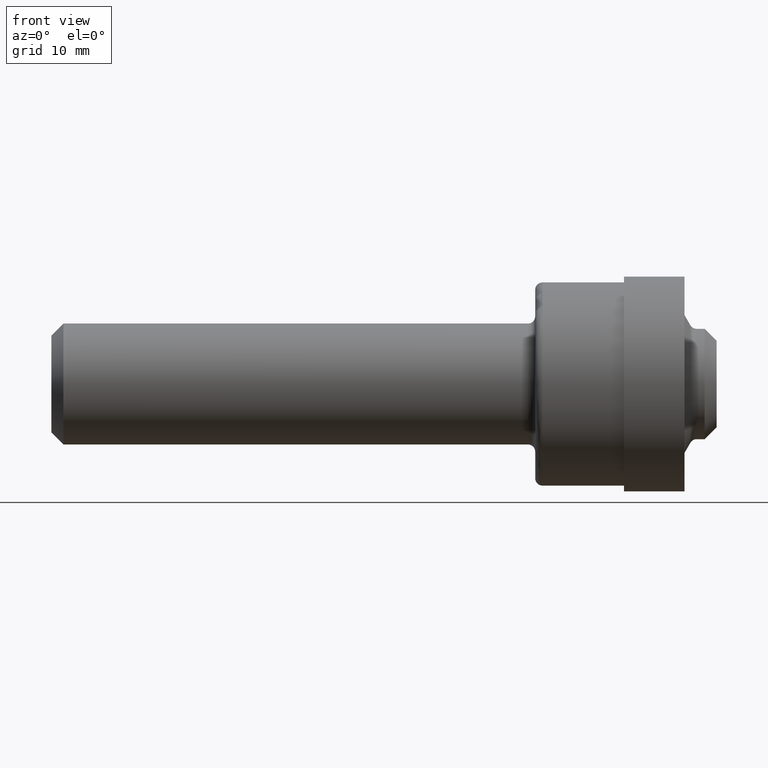
[diagram: clean part render]
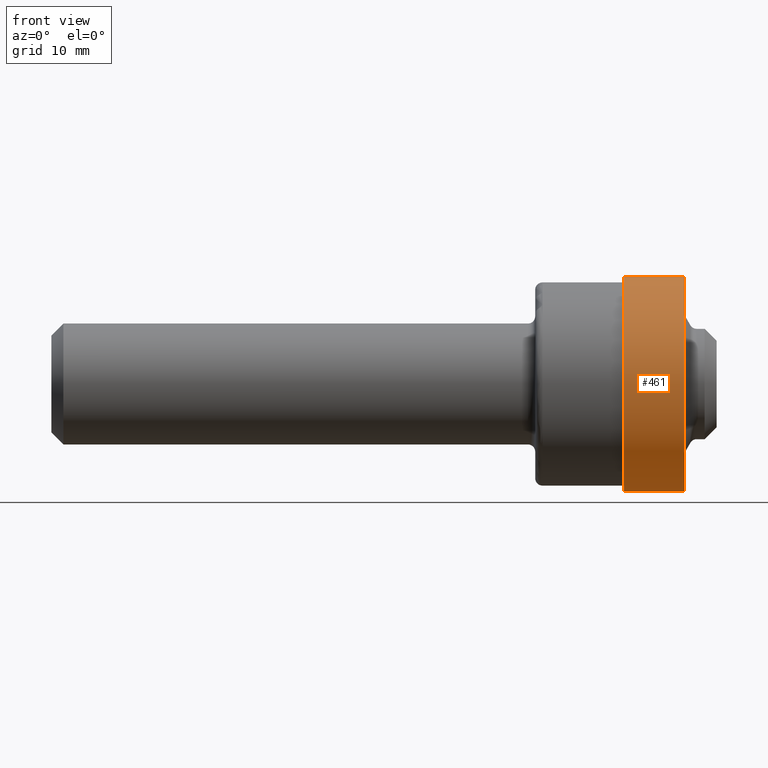
[diagram: same view with one face highlighted and labeled with its STEP entity id]
A machine part, front view. The second image highlights one B-rep face of the part: STEP entity #461.
In plain terms, the highlighted cylindrical surface (partial cylindrical patch) has radius 11.2776 mm, axis along (-1, -0, -0).
Its self-contained STEP definition (entity closure, byte-faithful):
#34 = ORIENTED_EDGE ( 'NONE', *, *, #370, .T. ) ;
#39 = DIRECTION ( 'NONE',  ( -1.000000000000000000, -0.000000000000000000, -0.000000000000000000 ) ) ;
#45 = CARTESIAN_POINT ( 'NONE',  ( 2.616999999999999993, 5.437431788214248526E-17, -0.4440000000000000058 ) ) ;
#78 = CARTESIAN_POINT ( 'NONE',  ( 2.616999999999999993, 0.000000000000000000, 0.4440000000000000058 ) ) ;
#93 = VECTOR ( 'NONE', #573, 39.37007874015748143 ) ;
#128 = CARTESIAN_POINT ( 'NONE',  ( 2.366999999999999993, 0.000000000000000000, 0.000000000000000000 ) ) ;
#141 = CARTESIAN_POINT ( 'NONE',  ( 0.000000000000000000, 0.000000000000000000, 0.000000000000000000 ) ) ;
#145 = LINE ( 'NONE', #303, #93 ) ;
#151 = CARTESIAN_POINT ( 'NONE',  ( 2.616999999999999993, 0.000000000000000000, 0.000000000000000000 ) ) ;
#174 = CARTESIAN_POINT ( 'NONE',  ( 0.000000000000000000, 0.000000000000000000, 0.4440000000000000058 ) ) ;
#214 = DIRECTION ( 'NONE',  ( -1.000000000000000000, -0.000000000000000000, -0.000000000000000000 ) ) ;
#228 = DIRECTION ( 'NONE',  ( 0.000000000000000000, 0.000000000000000000, 1.000000000000000000 ) ) ;
#237 = LINE ( 'NONE', #174, #591 ) ;
#238 = ORIENTED_EDGE ( 'NONE', *, *, #378, .F. ) ;
#251 = DIRECTION ( 'NONE',  ( 0.000000000000000000, 0.000000000000000000, 1.000000000000000000 ) ) ;
#264 = AXIS2_PLACEMENT_3D ( 'NONE', #141, #214, #251 ) ;
#275 = AXIS2_PLACEMENT_3D ( 'NONE', #151, #39, #427 ) ;
#280 = EDGE_LOOP ( 'NONE', ( #401, #347, #34, #238 ) ) ;
#303 = CARTESIAN_POINT ( 'NONE',  ( 0.000000000000000000, 5.437431788214248526E-17, -0.4440000000000000058 ) ) ;
#336 = VERTEX_POINT ( 'NONE', #78 ) ;
#347 = ORIENTED_EDGE ( 'NONE', *, *, #479, .T. ) ;
#370 = EDGE_CURVE ( 'NONE', #336, #628, #237, .T. ) ;
#378 = EDGE_CURVE ( 'NONE', #581, #628, #564, .T. ) ;
#387 = DIRECTION ( 'NONE',  ( -1.000000000000000000, -0.000000000000000000, -0.000000000000000000 ) ) ;
#401 = ORIENTED_EDGE ( 'NONE', *, *, #512, .F. ) ;
#427 = DIRECTION ( 'NONE',  ( 0.000000000000000000, 0.000000000000000000, 1.000000000000000000 ) ) ;
#429 = CIRCLE ( 'NONE', #275, 0.4440000000000000058 ) ;
#442 = VERTEX_POINT ( 'NONE', #45 ) ;
#461 = ADVANCED_FACE ( 'NONE', ( #629 ), #594, .T. ) ;
#479 = EDGE_CURVE ( 'NONE', #442, #336, #429, .T. ) ;
#501 = DIRECTION ( 'NONE',  ( -1.000000000000000000, -0.000000000000000000, -0.000000000000000000 ) ) ;
#512 = EDGE_CURVE ( 'NONE', #442, #581, #145, .T. ) ;
#564 = CIRCLE ( 'NONE', #678, 0.4440000000000000058 ) ;
#573 = DIRECTION ( 'NONE',  ( -1.000000000000000000, -0.000000000000000000, -0.000000000000000000 ) ) ;
#581 = VERTEX_POINT ( 'NONE', #683 ) ;
#591 = VECTOR ( 'NONE', #387, 39.37007874015748143 ) ;
#594 = CYLINDRICAL_SURFACE ( 'NONE', #264, 0.4440000000000000058 ) ;
#628 = VERTEX_POINT ( 'NONE', #671 ) ;
#629 = FACE_OUTER_BOUND ( 'NONE', #280, .T. ) ;
#671 = CARTESIAN_POINT ( 'NONE',  ( 2.366999999999999993, 0.000000000000000000, 0.4440000000000000058 ) ) ;
#678 = AXIS2_PLACEMENT_3D ( 'NONE', #128, #501, #228 ) ;
#683 = CARTESIAN_POINT ( 'NONE',  ( 2.366999999999999993, 5.437431788214248526E-17, -0.4440000000000000058 ) ) ;